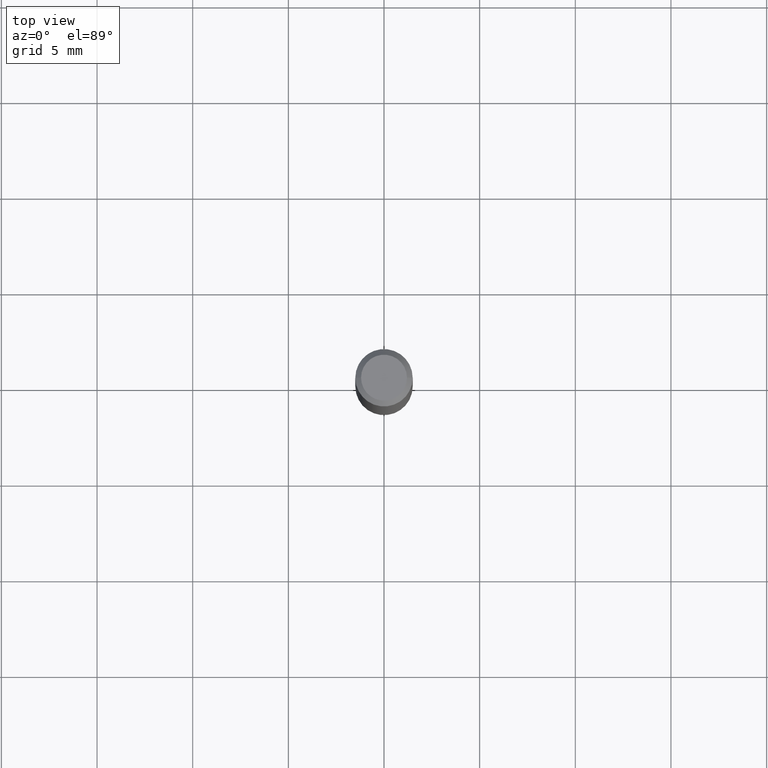
[diagram: clean part render]
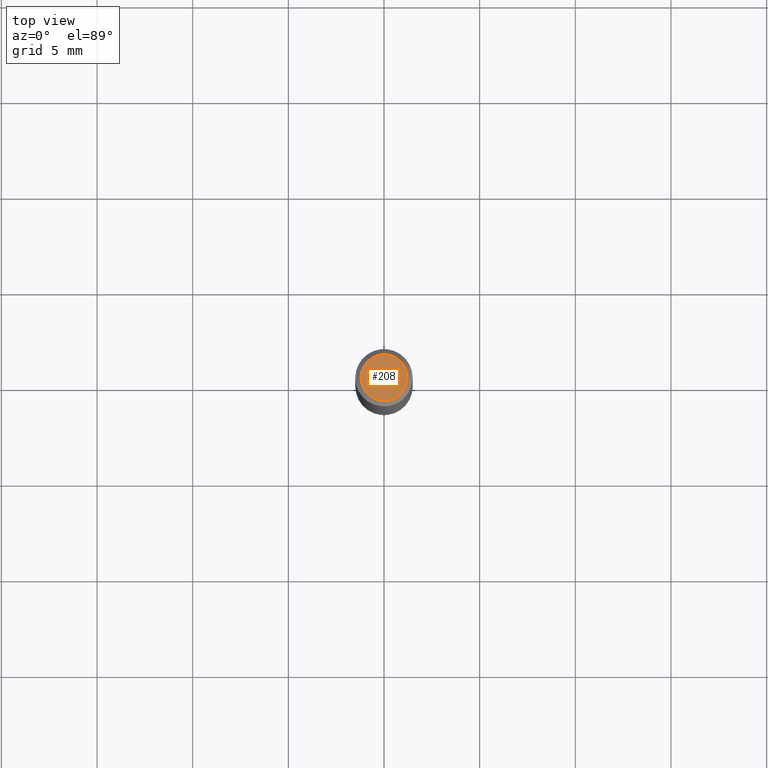
[diagram: same view with one face highlighted and labeled with its STEP entity id]
A machine part, top view. The second image highlights one B-rep face of the part: STEP entity #208.
In plain terms, the highlighted planar face has unit normal (0, -0, -1).
Its self-contained STEP definition (entity closure, byte-faithful):
#25 = AXIS2_PLACEMENT_3D ( 'NONE', #459, #379, #105 ) ;
#34 = AXIS2_PLACEMENT_3D ( 'NONE', #242, #51, #203 ) ;
#51 = DIRECTION ( 'NONE',  ( 2.438088387897960049E-29, -3.491481338843145188E-15, -1.000000000000000000 ) ) ;
#80 = EDGE_LOOP ( 'NONE', ( #90, #455 ) ) ;
#81 = VERTEX_POINT ( 'NONE', #337 ) ;
#90 = ORIENTED_EDGE ( 'NONE', *, *, #395, .T. ) ;
#105 = DIRECTION ( 'NONE',  ( 1.000000000000000000, -6.982962677686266711E-15, 4.876185090822587894E-29 ) ) ;
#118 = VERTEX_POINT ( 'NONE', #145 ) ;
#145 = CARTESIAN_POINT ( 'NONE',  ( -0.04724000000000000421, 3.504923541997677355E-16, -3.380025165670481712E-19 ) ) ;
#147 = CIRCLE ( 'NONE', #470, 0.04724000000000000421 ) ;
#160 = CARTESIAN_POINT ( 'NONE',  ( 8.265746106709734507E-48, -1.180129479067563789E-33, -3.380025165646692144E-19 ) ) ;
#203 = DIRECTION ( 'NONE',  ( -1.000000000000000000, 6.982962677686265922E-15, -4.876176775795935793E-29 ) ) ;
#208 = ADVANCED_FACE ( 'NONE', ( #387 ), #477, .F. ) ;
#242 = CARTESIAN_POINT ( 'NONE',  ( 4.132873053354867254E-48, -5.900647395337818946E-34, -1.690012582823346072E-19 ) ) ;
#265 = DIRECTION ( 'NONE',  ( 1.000000000000000000, -6.982962677686266711E-15, 4.876185090822587894E-29 ) ) ;
#307 = DIRECTION ( 'NONE',  ( -2.445468806185136597E-29, 3.491481338843145583E-15, 1.000000000000000000 ) ) ;
#321 = CIRCLE ( 'NONE', #25, 0.04724000000000000421 ) ;
#337 = CARTESIAN_POINT ( 'NONE',  ( 0.04724000000000000421, -3.852183633974369345E-16, -3.380025165621689721E-19 ) ) ;
#379 = DIRECTION ( 'NONE',  ( -2.445468806185136597E-29, 3.491481338843145583E-15, 1.000000000000000000 ) ) ;
#387 = FACE_OUTER_BOUND ( 'NONE', #80, .T. ) ;
#395 = EDGE_CURVE ( 'NONE', #118, #81, #147, .T. ) ;
#427 = EDGE_CURVE ( 'NONE', #81, #118, #321, .T. ) ;
#455 = ORIENTED_EDGE ( 'NONE', *, *, #427, .T. ) ;
#459 = CARTESIAN_POINT ( 'NONE',  ( 8.265746106709734507E-48, -1.180129479067563789E-33, -3.380025165646692144E-19 ) ) ;
#470 = AXIS2_PLACEMENT_3D ( 'NONE', #160, #307, #265 ) ;
#477 = PLANE ( 'NONE',  #34 ) ;